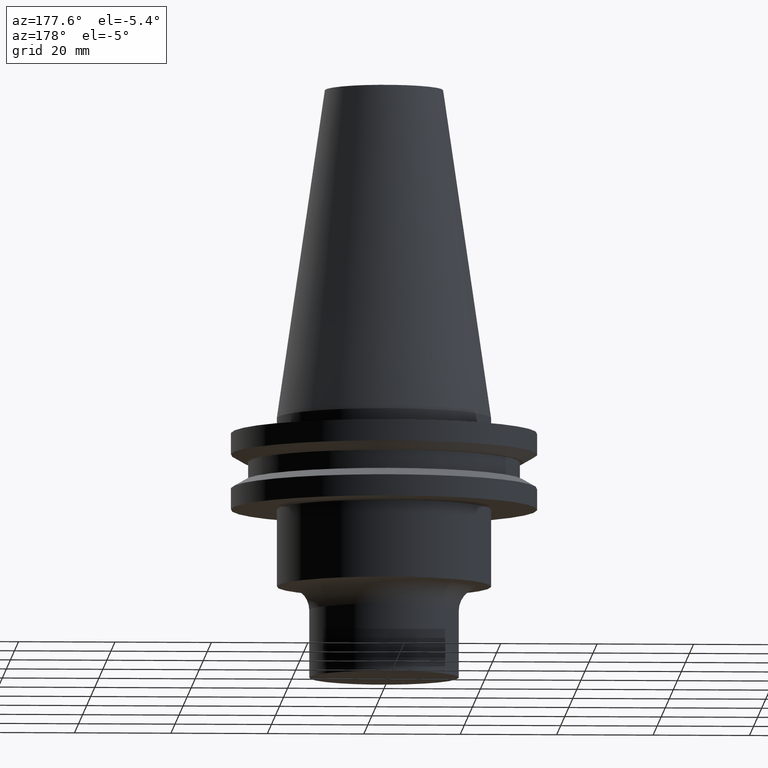
[diagram: clean part render]
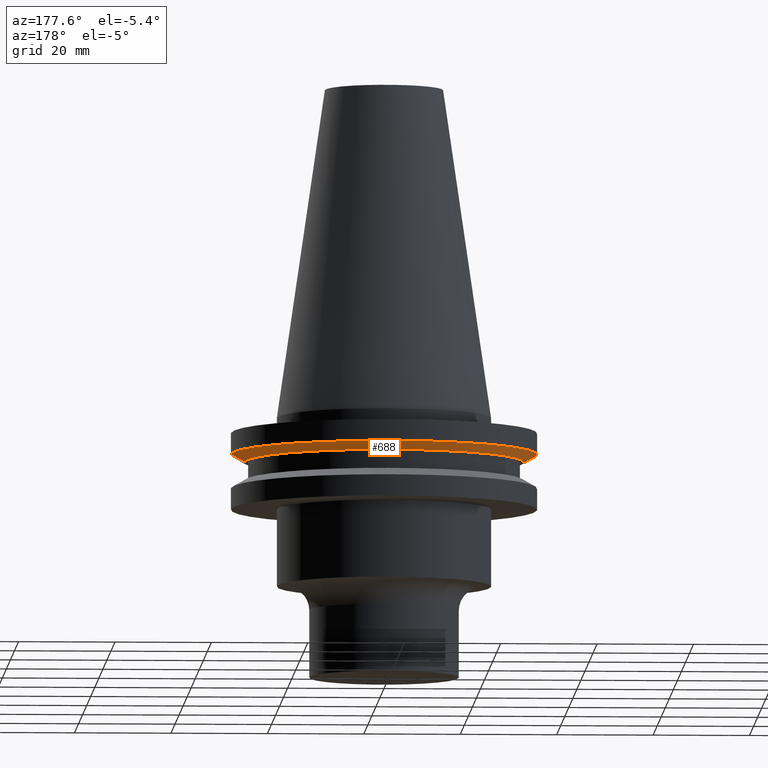
[diagram: same view with one face highlighted and labeled with its STEP entity id]
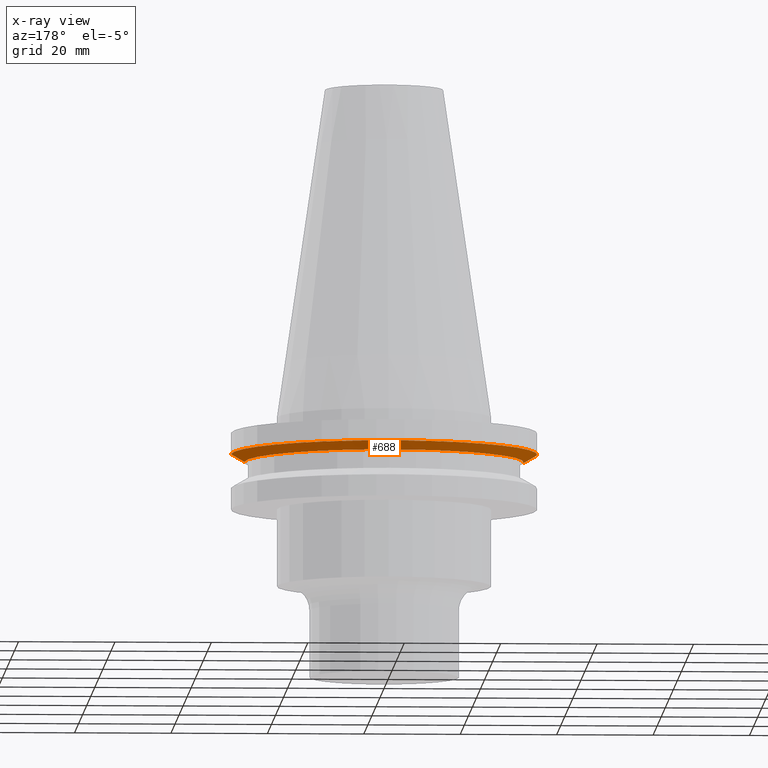
[diagram: x-ray of the same camera — body ghosted, the highlighted face saturated]
A machine part, auxiliary view. The second image highlights one B-rep face of the part: STEP entity #688.
The next image is the same camera in x-ray: the body ghosted, the highlighted face saturated — about 0% of this face is hidden behind the body in this view.
In plain terms, the highlighted conical surface has half-angle 60 deg.
Its self-contained STEP definition (entity closure, byte-faithful):
#26 = VECTOR ( 'NONE', #454, 1000.000000000000000 ) ;
#33 = DIRECTION ( 'NONE',  ( -0.000000000000000000, -0.000000000000000000, 1.000000000000000000 ) ) ;
#66 = EDGE_LOOP ( 'NONE', ( #291, #651, #90, #368 ) ) ;
#90 = ORIENTED_EDGE ( 'NONE', *, *, #217, .F. ) ;
#115 = DIRECTION ( 'NONE',  ( -0.000000000000000000, -0.000000000000000000, 1.000000000000000000 ) ) ;
#117 = DIRECTION ( 'NONE',  ( -0.8660254037844389297, 1.060575238724907285E-16, 0.4999999999999995004 ) ) ;
#144 = VERTEX_POINT ( 'NONE', #334 ) ;
#181 = CARTESIAN_POINT ( 'NONE',  ( -28.97919780457007732, 3.548928183322474856E-15, -9.205000000000005400 ) ) ;
#217 = EDGE_CURVE ( 'NONE', #494, #311, #443, .T. ) ;
#224 = DIRECTION ( 'NONE',  ( 1.000000000000000000, 0.000000000000000000, 0.000000000000000000 ) ) ;
#245 = CARTESIAN_POINT ( 'NONE',  ( 0.000000000000000000, 0.000000000000000000, -9.205000000000005400 ) ) ;
#291 = ORIENTED_EDGE ( 'NONE', *, *, #714, .T. ) ;
#297 = DIRECTION ( 'NONE',  ( 1.000000000000000000, 0.000000000000000000, 0.000000000000000000 ) ) ;
#303 = AXIS2_PLACEMENT_3D ( 'NONE', #358, #115, #533 ) ;
#311 = VERTEX_POINT ( 'NONE', #366 ) ;
#316 = CONICAL_SURFACE ( 'NONE', #414, 28.97919780457007732, 1.047197551196598297 ) ;
#334 = CARTESIAN_POINT ( 'NONE',  ( 28.97919780457007732, 0.000000000000000000, -9.205000000000005400 ) ) ;
#358 = CARTESIAN_POINT ( 'NONE',  ( 0.000000000000000000, 0.000000000000000000, -7.605276606597335842 ) ) ;
#366 = CARTESIAN_POINT ( 'NONE',  ( -31.75000000000000000, 3.888253587292846476E-15, -7.605276606597335842 ) ) ;
#368 = ORIENTED_EDGE ( 'NONE', *, *, #416, .F. ) ;
#398 = AXIS2_PLACEMENT_3D ( 'NONE', #245, #729, #297 ) ;
#414 = AXIS2_PLACEMENT_3D ( 'NONE', #576, #33, #224 ) ;
#416 = EDGE_CURVE ( 'NONE', #144, #494, #559, .T. ) ;
#443 = CIRCLE ( 'NONE', #303, 31.75000000000000000 ) ;
#448 = CARTESIAN_POINT ( 'NONE',  ( 31.75000000000000000, 0.000000000000000000, -7.605276606597335842 ) ) ;
#454 = DIRECTION ( 'NONE',  ( 0.8660254037844389297, 0.000000000000000000, 0.4999999999999995004 ) ) ;
#458 = VECTOR ( 'NONE', #117, 1000.000000000000000 ) ;
#494 = VERTEX_POINT ( 'NONE', #448 ) ;
#517 = CIRCLE ( 'NONE', #398, 28.97919780457007732 ) ;
#533 = DIRECTION ( 'NONE',  ( 1.000000000000000000, 0.000000000000000000, 0.000000000000000000 ) ) ;
#559 = LINE ( 'NONE', #633, #26 ) ;
#576 = CARTESIAN_POINT ( 'NONE',  ( 0.000000000000000000, 0.000000000000000000, -9.205000000000005400 ) ) ;
#633 = CARTESIAN_POINT ( 'NONE',  ( 28.97919780457007732, 0.000000000000000000, -9.205000000000005400 ) ) ;
#642 = VERTEX_POINT ( 'NONE', #648 ) ;
#648 = CARTESIAN_POINT ( 'NONE',  ( -28.97919780457007732, 3.718590885307660666E-15, -9.205000000000005400 ) ) ;
#651 = ORIENTED_EDGE ( 'NONE', *, *, #763, .T. ) ;
#688 = ADVANCED_FACE ( 'NONE', ( #770 ), #316, .T. ) ;
#714 = EDGE_CURVE ( 'NONE', #144, #642, #517, .T. ) ;
#717 = LINE ( 'NONE', #181, #458 ) ;
#729 = DIRECTION ( 'NONE',  ( -0.000000000000000000, -0.000000000000000000, 1.000000000000000000 ) ) ;
#763 = EDGE_CURVE ( 'NONE', #642, #311, #717, .T. ) ;
#770 = FACE_OUTER_BOUND ( 'NONE', #66, .T. ) ;